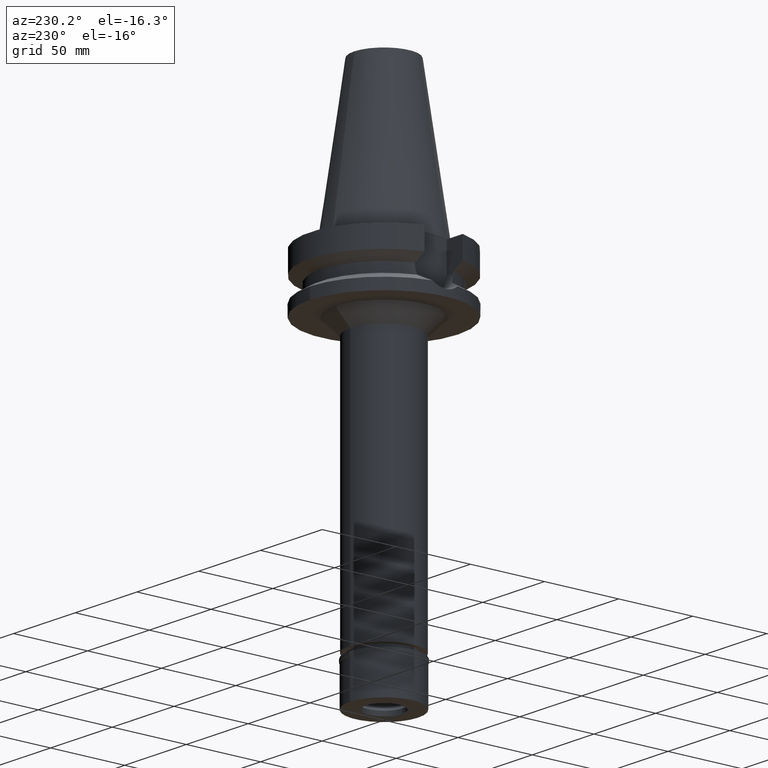
[diagram: clean part render]
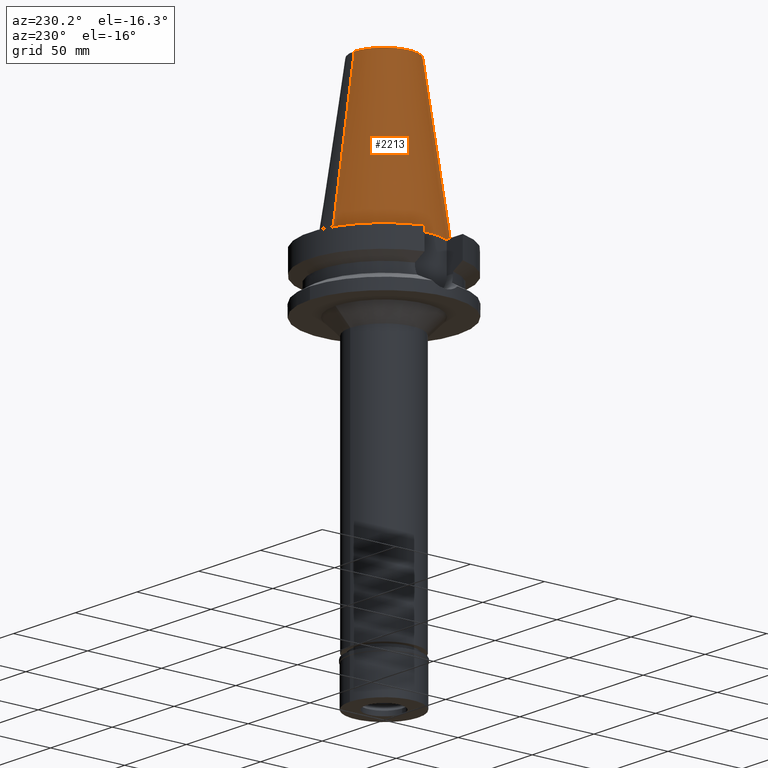
[diagram: same view with one face highlighted and labeled with its STEP entity id]
A machine part, auxiliary view. The second image highlights one B-rep face of the part: STEP entity #2213.
In plain terms, the highlighted conical surface has half-angle 8.297 deg.
Its self-contained STEP definition (entity closure, byte-faithful):
#36 = VERTEX_POINT ( 'NONE', #1436 ) ;
#65 = DIRECTION ( 'NONE',  ( 0.0000000000000000000, 0.1443043893538948075, -0.9895333461855641000 ) ) ;
#211 = VERTEX_POINT ( 'NONE', #1750 ) ;
#312 = ORIENTED_EDGE ( 'NONE', *, *, #2178, .T. ) ;
#497 = CARTESIAN_POINT ( 'NONE',  ( 0.0000000000000000000, 1.847992019912999597E-14, 3.979039320256999774E-13 ) ) ;
#568 = ORIENTED_EDGE ( 'NONE', *, *, #1508, .T. ) ;
#787 = LINE ( 'NONE', #1283, #2146 ) ;
#876 = DIRECTION ( 'NONE',  ( 0.0000000000000000000, -1.000000000000000000, 0.0000000000000000000 ) ) ;
#909 = CIRCLE ( 'NONE', #2862, 20.07942971896000017 ) ;
#1010 = CARTESIAN_POINT ( 'NONE',  ( 0.0000000000000000000, 1.847992019912999597E-14, 50.89999999999999858 ) ) ;
#1090 = DIRECTION ( 'NONE',  ( 0.0000000000000000000, -0.1443043893538948075, -0.9895333461855641000 ) ) ;
#1283 = CARTESIAN_POINT ( 'NONE',  ( 0.0000000000000000000, 20.07942971896000017, 101.7999999999999972 ) ) ;
#1315 = CARTESIAN_POINT ( 'NONE',  ( 0.0000000000000000000, 1.847992019912999597E-14, 101.7999999999999972 ) ) ;
#1345 = CARTESIAN_POINT ( 'NONE',  ( 0.0000000000000000000, -20.07942971896000017, 101.7999999999999972 ) ) ;
#1350 = EDGE_CURVE ( 'NONE', #2662, #36, #1532, .T. ) ;
#1436 = CARTESIAN_POINT ( 'NONE',  ( 0.0000000000000000000, 34.92499999999999716, 5.755396159657000327E-13 ) ) ;
#1490 = DIRECTION ( 'NONE',  ( 0.0000000000000000000, 0.0000000000000000000, -1.000000000000000000 ) ) ;
#1508 = EDGE_CURVE ( 'NONE', #211, #2180, #909, .T. ) ;
#1523 = EDGE_CURVE ( 'NONE', #211, #2662, #2069, .T. ) ;
#1532 = CIRCLE ( 'NONE', #2033, 34.92499999999999716 ) ;
#1577 = AXIS2_PLACEMENT_3D ( 'NONE', #1010, #1995, #2756 ) ;
#1750 = CARTESIAN_POINT ( 'NONE',  ( 0.0000000000000000000, -20.07942971896000017, 101.7999999999999972 ) ) ;
#1773 = ORIENTED_EDGE ( 'NONE', *, *, #1523, .F. ) ;
#1975 = CARTESIAN_POINT ( 'NONE',  ( 0.0000000000000000000, 20.07942971896000017, 101.7999999999999972 ) ) ;
#1986 = CONICAL_SURFACE ( 'NONE', #1577, 27.50221485948000222, 0.1448099680379422438 ) ;
#1995 = DIRECTION ( 'NONE',  ( 0.0000000000000000000, 0.0000000000000000000, -1.000000000000000000 ) ) ;
#2033 = AXIS2_PLACEMENT_3D ( 'NONE', #497, #1490, #2482 ) ;
#2061 = ORIENTED_EDGE ( 'NONE', *, *, #1350, .F. ) ;
#2069 = LINE ( 'NONE', #1345, #3107 ) ;
#2146 = VECTOR ( 'NONE', #65, 1000.000000000000114 ) ;
#2178 = EDGE_CURVE ( 'NONE', #2180, #36, #787, .T. ) ;
#2180 = VERTEX_POINT ( 'NONE', #1975 ) ;
#2213 = ADVANCED_FACE ( 'NONE', ( #2778 ), #1986, .T. ) ;
#2482 = DIRECTION ( 'NONE',  ( 0.0000000000000000000, -1.000000000000000000, 0.0000000000000000000 ) ) ;
#2662 = VERTEX_POINT ( 'NONE', #3150 ) ;
#2685 = EDGE_LOOP ( 'NONE', ( #2061, #1773, #568, #312 ) ) ;
#2756 = DIRECTION ( 'NONE',  ( 0.0000000000000000000, -1.000000000000000000, 0.0000000000000000000 ) ) ;
#2778 = FACE_OUTER_BOUND ( 'NONE', #2685, .T. ) ;
#2862 = AXIS2_PLACEMENT_3D ( 'NONE', #1315, #3073, #876 ) ;
#3073 = DIRECTION ( 'NONE',  ( 0.0000000000000000000, 0.0000000000000000000, -1.000000000000000000 ) ) ;
#3107 = VECTOR ( 'NONE', #1090, 1000.000000000000114 ) ;
#3150 = CARTESIAN_POINT ( 'NONE',  ( 0.0000000000000000000, -34.92499999999999716, 5.755396159657000327E-13 ) ) ;